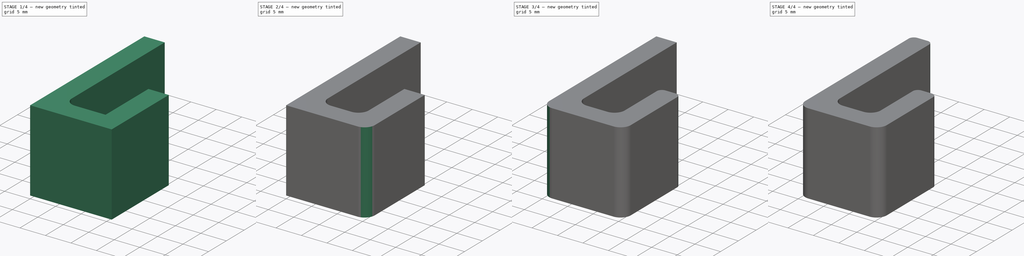
[diagram: build sequence overview — one tinted view per stage of 4, left to right]
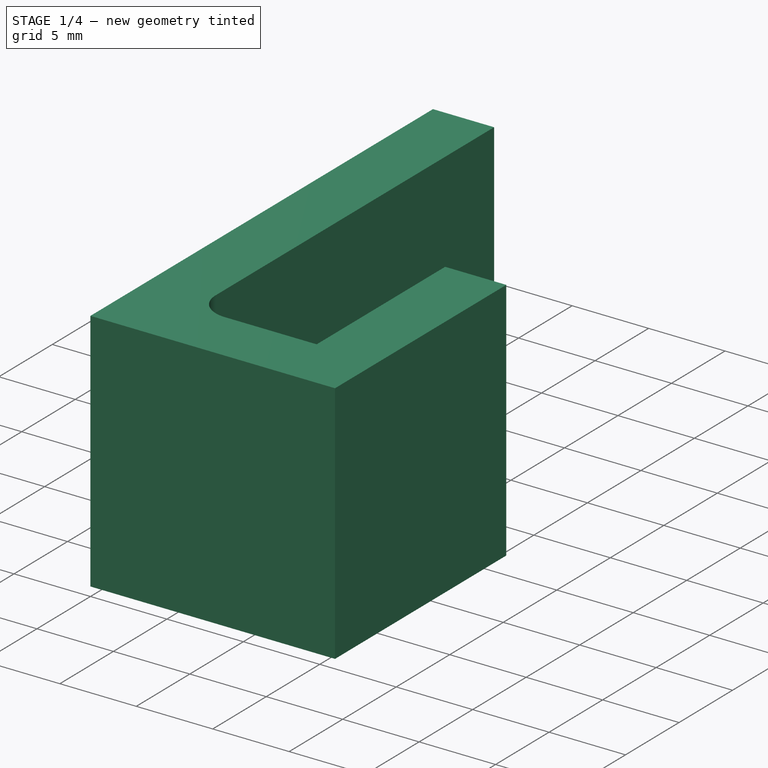
[diagram: stage 1 of 4 — iso view after this stage's code; geometry added in this stage tinted green]
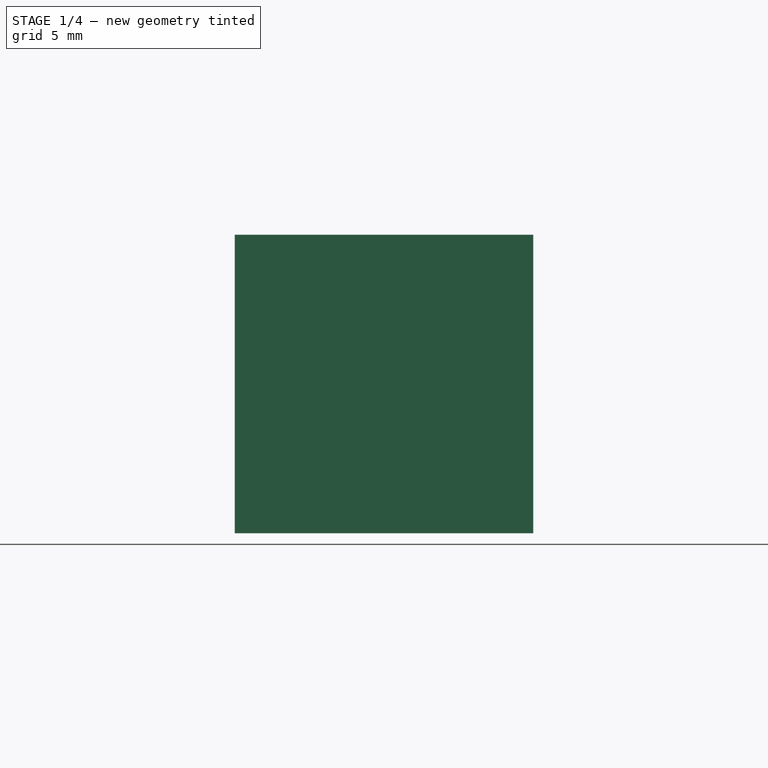
[diagram: stage 1 of 4 — front view after this stage's code; geometry added in this stage tinted green]
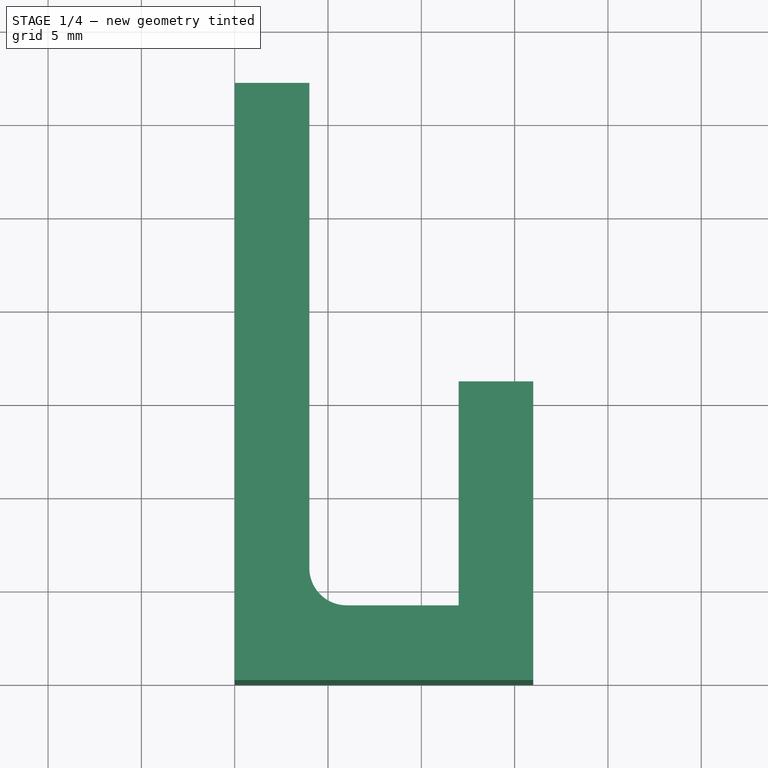
[diagram: stage 1 of 4 — top view after this stage's code; geometry added in this stage tinted green]
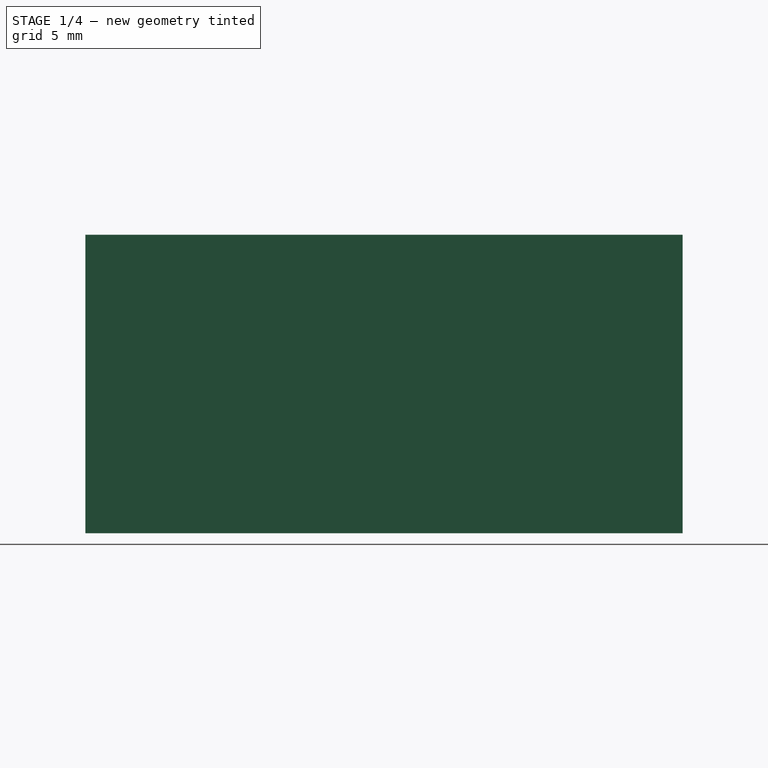
[diagram: stage 1 of 4 — right view after this stage's code; geometry added in this stage tinted green]
FCSTD DOCUMENT  (FreeCAD 0.20R29603 (Git))
Label: Hook
License: All rights reserved
LicenseURL: http://en.wikipedia.org/wiki/All_rights_reserved
objects: PartDesign::Fillet×8, Sketcher::SketchObject×1, Spreadsheet::Sheet×1, PartDesign::Pad×1, PartDesign::Body×1, App::Part×1
note: 20 computed .brp shape members not serialized (recipe doc carries the construction recipe); baked Part::Feature solids carry a one-line shape summary decoded from their .brp

FEATURE [Sketcher::SketchObject] Sketch
  FullyConstrained = true
  MapMode = 5
  Support = -> [XY_Plane001]
  expr: Constraints[17] = Spreadsheet.tall_height
  expr: Constraints[18] = Spreadsheet.short_height
  expr: Constraints[19] = Spreadsheet.inner_depth
  expr: Constraints[20] = Spreadsheet.inner_depth + 2 * Spreadsheet.thickness
  expr: Constraints[21] = Spreadsheet.thickness
  expr: Constraints[22] = Spreadsheet.thickness
  sketch-geometry (8):
    g0: LineSegment StartX=0 StartY=0 StartZ=0 EndX=0 EndY=32 EndZ=0
    g1: LineSegment StartX=0 StartY=0 StartZ=0 EndX=16 EndY=0 EndZ=0
    g2: LineSegment StartX=16 StartY=0 StartZ=0 EndX=16 EndY=16 EndZ=0
    g3: LineSegment StartX=16 StartY=16 StartZ=0 EndX=12 EndY=16 EndZ=0
    g4: LineSegment StartX=12 StartY=16 StartZ=0 EndX=12 EndY=4 EndZ=0
    g5: LineSegment StartX=12 StartY=4 StartZ=0 EndX=4 EndY=4 EndZ=0
    g6: LineSegment StartX=4 StartY=4 StartZ=0 EndX=4 EndY=32 EndZ=0
    g7: LineSegment StartX=4 StartY=32 StartZ=0 EndX=0 EndY=32 EndZ=0
  constraints (23):
    c: Coincident(g0,g-1)
    c: Vertical(g0)
    c: Coincident(g1,g0)
    c: Horizontal(g1)
    c: Coincident(g2,g1)
    c: Vertical(g2)
    c: Coincident(g3,g2)
    c: Horizontal(g3)
    c: Coincident(g4,g3)
    c: Vertical(g4)
    c: Coincident(g5,g4)
    c: Horizontal(g5)
    c: Coincident(g6,g5)
    c: Vertical(g6)
    c: Coincident(g7,g6)
    c: Coincident(g7,g0)
    c: Horizontal(g7)
    c: DistanceY(g0,g0) = 32
    c: DistanceY(g2,g2) = 16
    c: DistanceX(g5,g5) = 8
    c: DistanceX(g1,g1) = 16
    c: DistanceX(g7,g7) = 4
    c: DistanceY(g0,g5) = 4
FEATURE [Spreadsheet::Sheet] Spreadsheet
  cells = A1=tall_height; B1(tall_height)=32; A2=width; B2(width)=16; A3=inner_depth; B3(inner_depth)=8; A4=corner_radius; B4(corner_radius)=2; A5=short_height; B5(short_height)=16; A6=thickness; B6(thickness)=4; A7=edge_radius; B7(edge_radius)=1
FEATURE [PartDesign::Pad] Pad
  Direction = (0,0,1)
  Length = 16
  Length2 = 10
  Profile = -> Sketch
  ReferenceAxis = -> Sketch [N_Axis]
  Type = 0
  expr: Length = Spreadsheet.width
FEATURE [PartDesign::Fillet] Fillet
  Base = -> Pad [Edge8]
  BaseFeature = -> Pad
  Radius = 2
  SupportTransform = false
  UseAllEdges = false
  expr: Radius = Spreadsheet.corner_radius
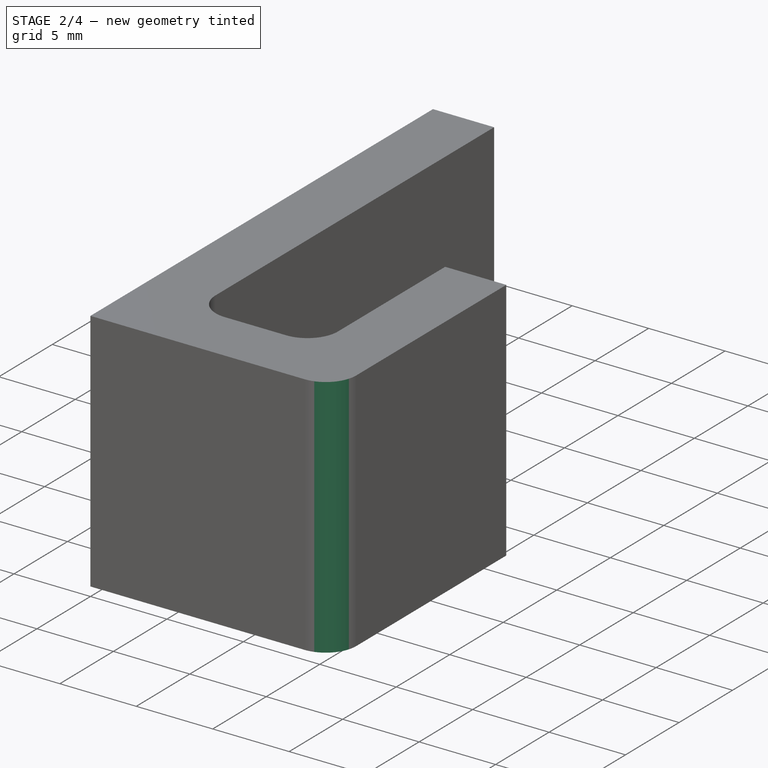
[diagram: stage 2 of 4 — iso view after this stage's code; geometry added in this stage tinted green]
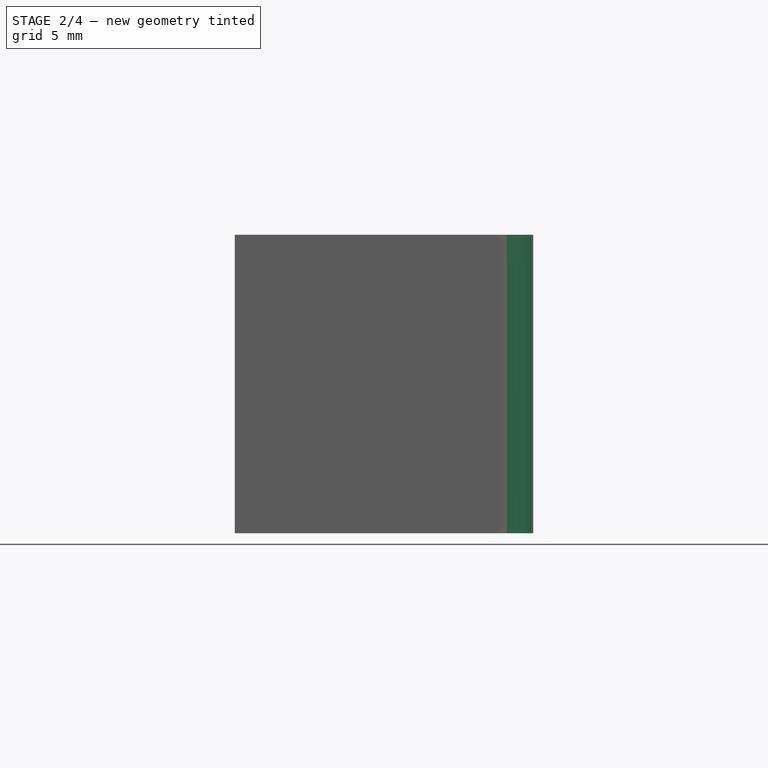
[diagram: stage 2 of 4 — front view after this stage's code; geometry added in this stage tinted green]
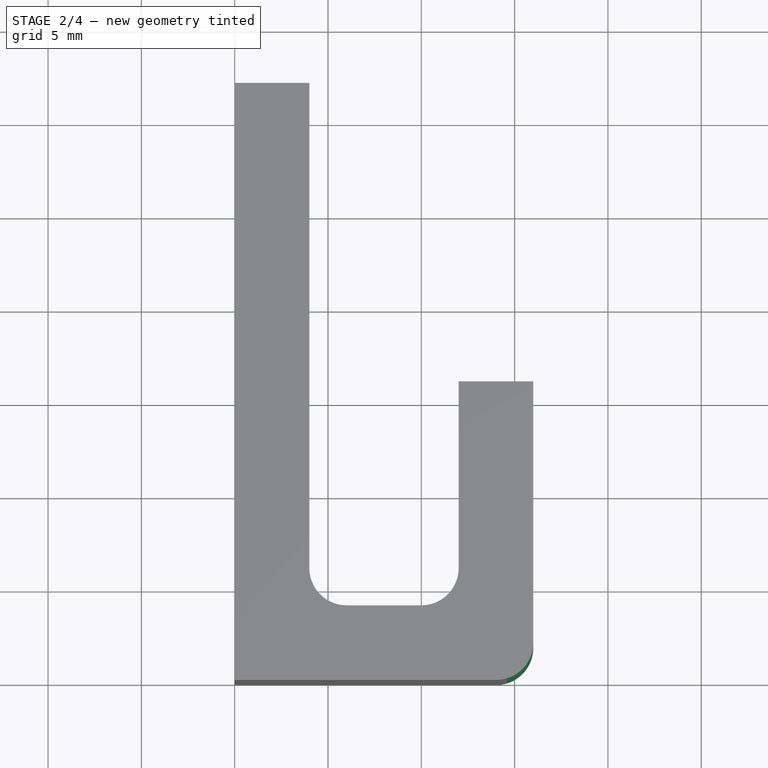
[diagram: stage 2 of 4 — top view after this stage's code; geometry added in this stage tinted green]
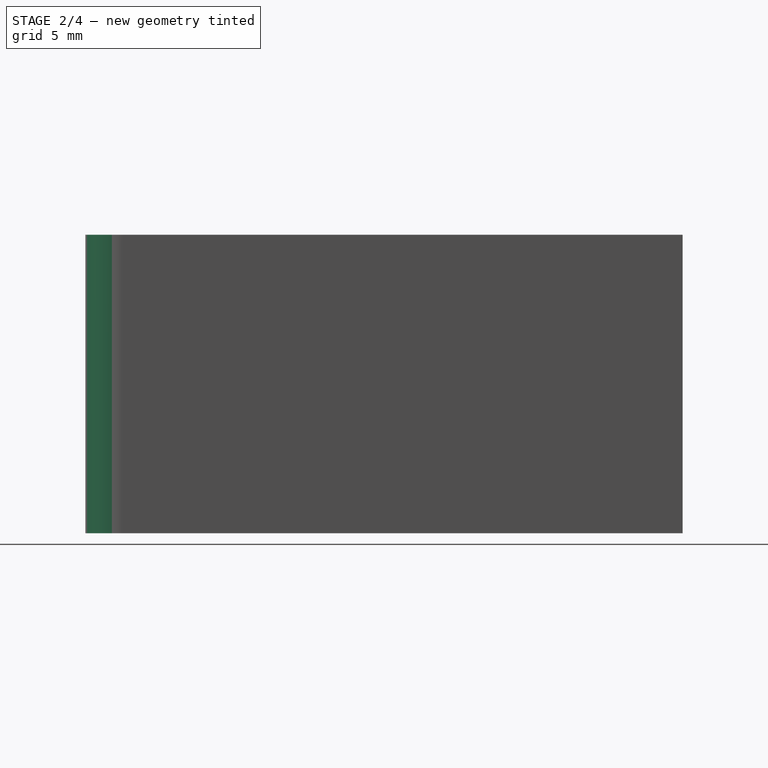
[diagram: stage 2 of 4 — right view after this stage's code; geometry added in this stage tinted green]
FEATURE [PartDesign::Fillet] Fillet001
  Base = -> Fillet [Edge23]
  BaseFeature = -> Fillet
  Radius = 2
  SupportTransform = false
  UseAllEdges = false
  expr: Radius = Spreadsheet.corner_radius
FEATURE [PartDesign::Fillet] Fillet002
  Base = -> Fillet001 [Edge26]
  BaseFeature = -> Fillet001
  Radius = 2
  SupportTransform = false
  UseAllEdges = false
  expr: Radius = Spreadsheet.corner_radius
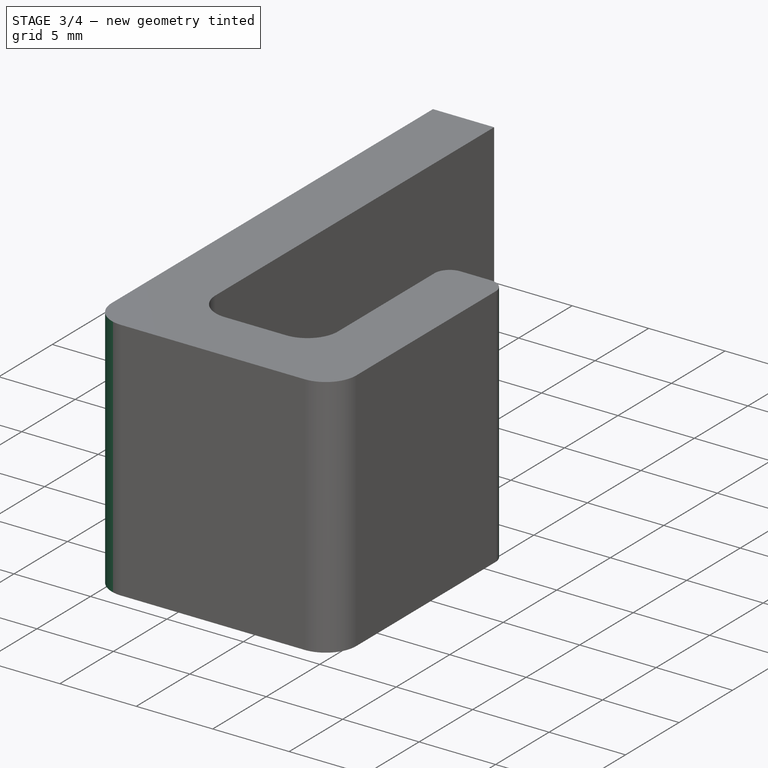
[diagram: stage 3 of 4 — iso view after this stage's code; geometry added in this stage tinted green]
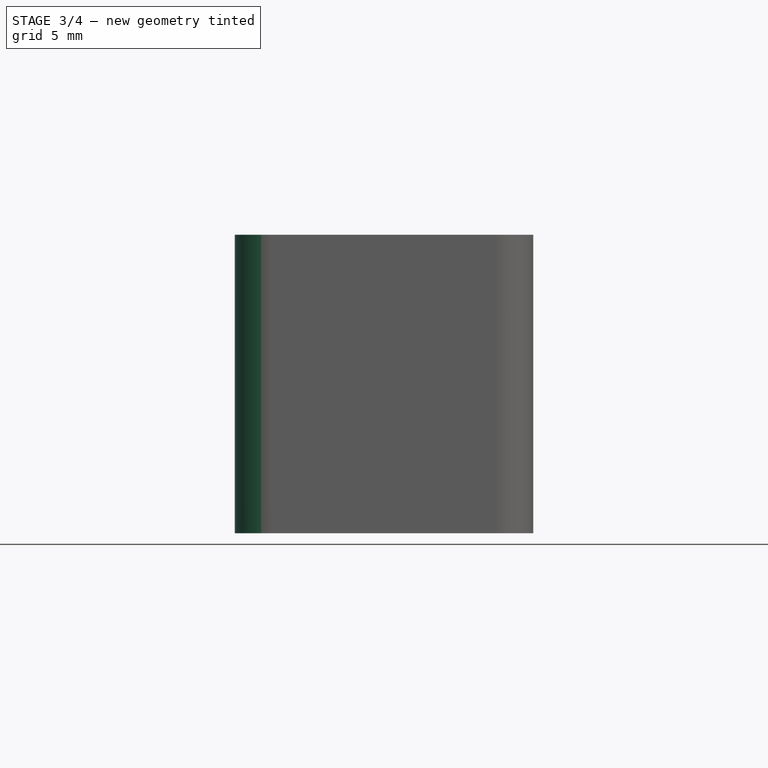
[diagram: stage 3 of 4 — front view after this stage's code; geometry added in this stage tinted green]
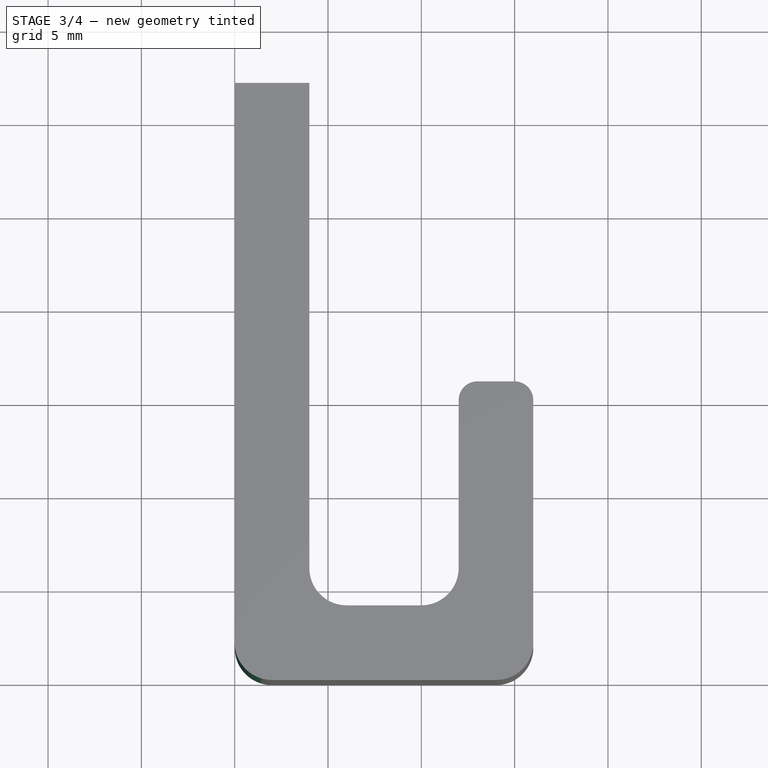
[diagram: stage 3 of 4 — top view after this stage's code; geometry added in this stage tinted green]
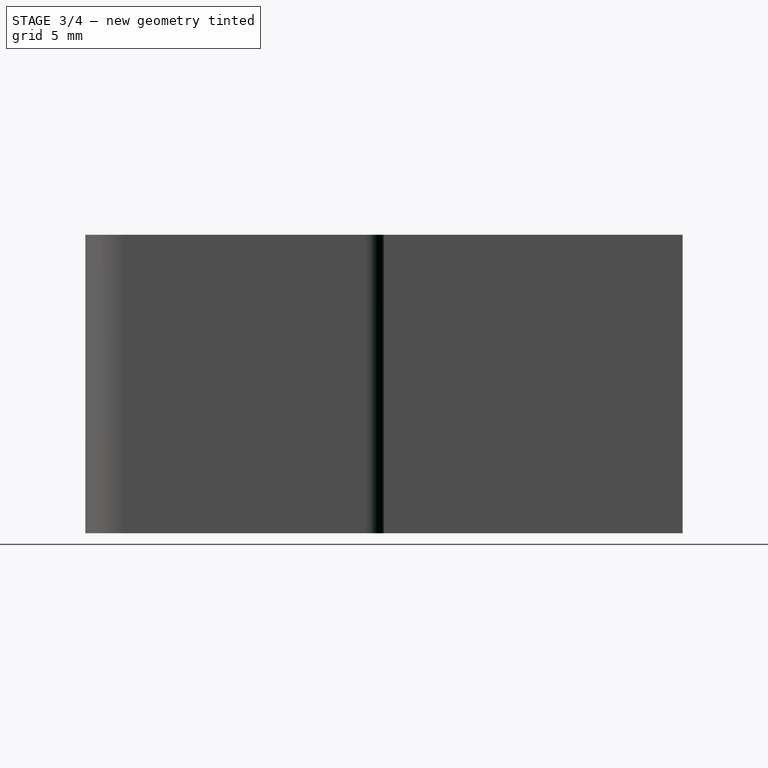
[diagram: stage 3 of 4 — right view after this stage's code; geometry added in this stage tinted green]
FEATURE [PartDesign::Fillet] Fillet003
  Base = -> Fillet002 [Edge19]
  BaseFeature = -> Fillet002
  Radius = 2
  SupportTransform = false
  UseAllEdges = false
  expr: Radius = Spreadsheet.corner_radius
FEATURE [PartDesign::Fillet] Fillet004
  Base = -> Fillet003 [Edge22]
  BaseFeature = -> Fillet003
  Radius = 1
  SupportTransform = false
  UseAllEdges = false
  expr: Radius = Spreadsheet.edge_radius
FEATURE [PartDesign::Fillet] Fillet005
  Base = -> Fillet004 [Edge21]
  BaseFeature = -> Fillet004
  Radius = 1
  SupportTransform = false
  UseAllEdges = false
  expr: Radius = Spreadsheet.edge_radius
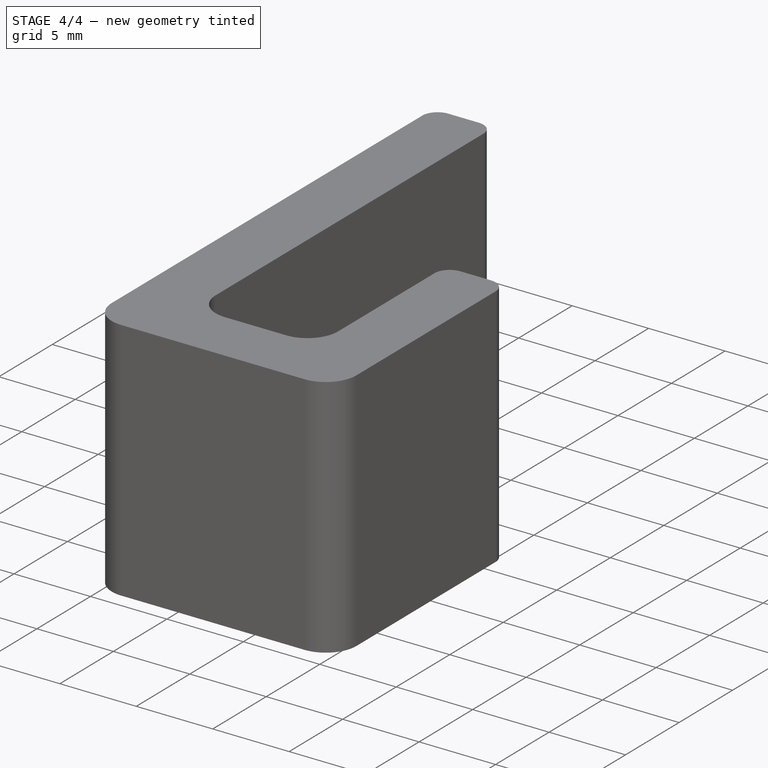
[diagram: stage 4 of 4 — iso view after this stage's code; geometry added in this stage tinted green]
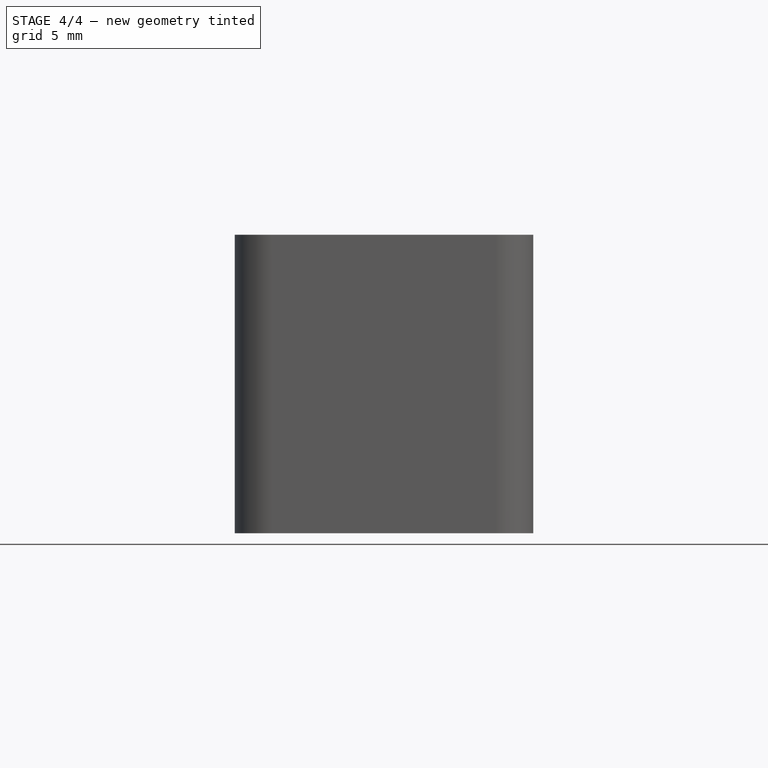
[diagram: stage 4 of 4 — front view after this stage's code; geometry added in this stage tinted green]
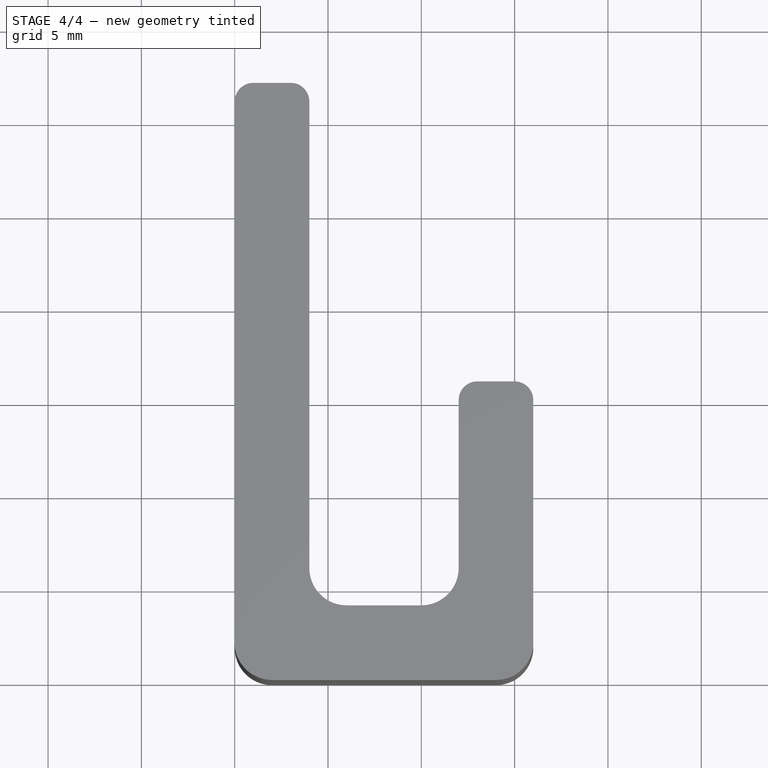
[diagram: stage 4 of 4 — top view after this stage's code; geometry added in this stage tinted green]
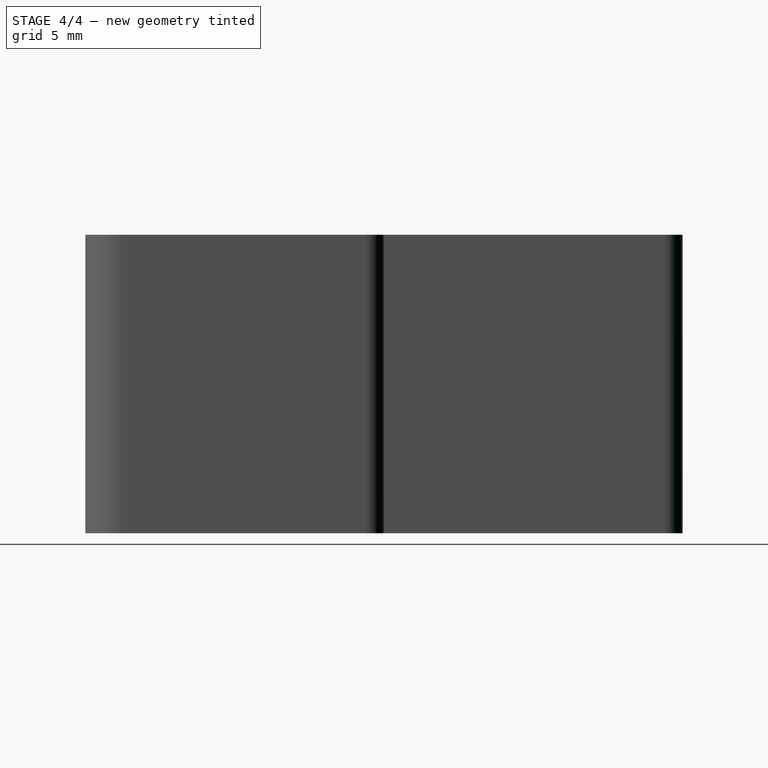
[diagram: stage 4 of 4 — right view after this stage's code; geometry added in this stage tinted green]
FEATURE [PartDesign::Fillet] Fillet006
  Base = -> Fillet005 [Edge38]
  BaseFeature = -> Fillet005
  Radius = 1
  SupportTransform = false
  UseAllEdges = false
  expr: Radius = Spreadsheet.edge_radius
FEATURE [PartDesign::Fillet] Fillet007
  Base = -> Fillet006 [Edge23]
  BaseFeature = -> Fillet006
  Radius = 1
  SupportTransform = false
  UseAllEdges = false
  expr: Radius = Spreadsheet.edge_radius
FEATURE [PartDesign::Body] Body
  Group = -> [Sketch,Pad,Fillet,Fillet001,Fillet002,Fillet003,Fillet004,Fillet005,Fillet006,Fillet007]
  Origin = -> Origin001
  Tip = -> Fillet007
FEATURE [App::Part] Part
  Group = -> [Body]
  Origin = -> Origin
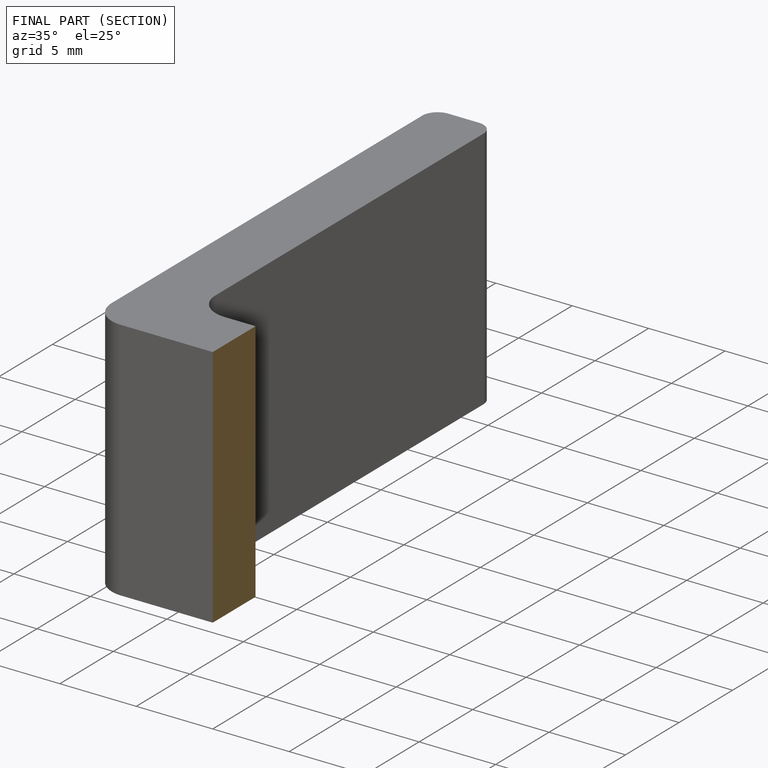
[diagram: finished part — half-section view (interior)]
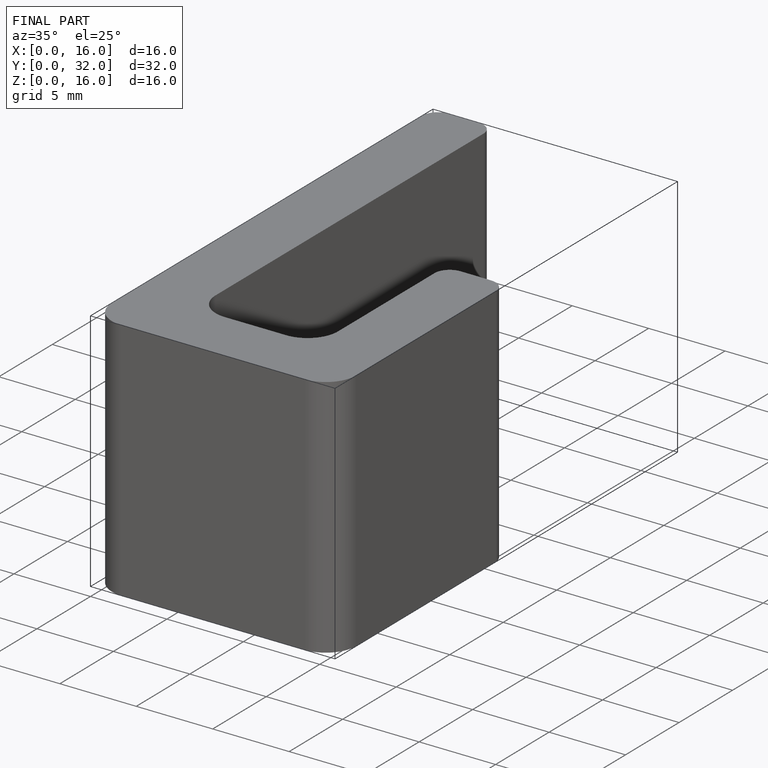
[diagram: finished part — iso view with bounding-box wireframe]
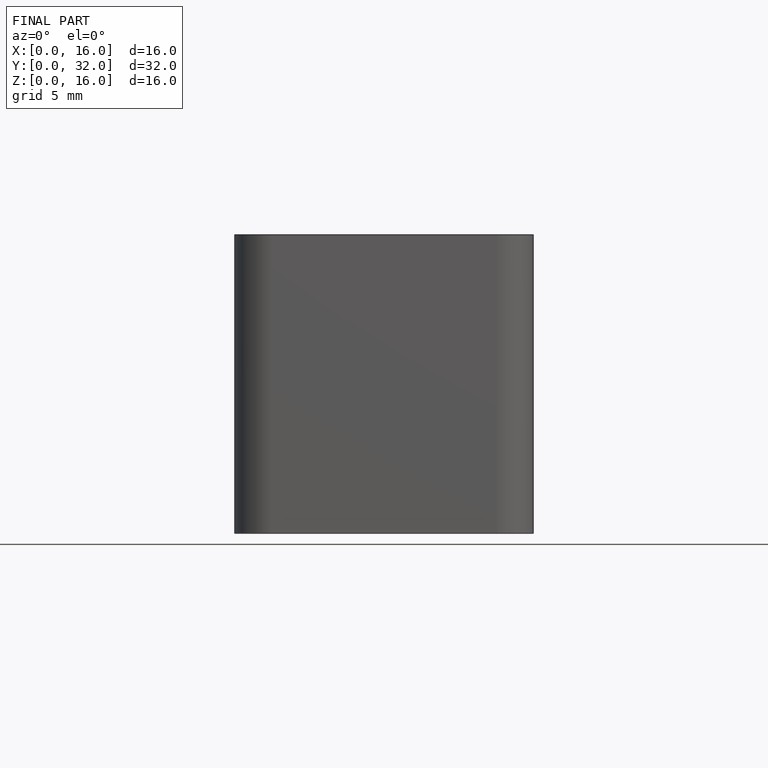
[diagram: finished part — front view with bounding-box wireframe]
